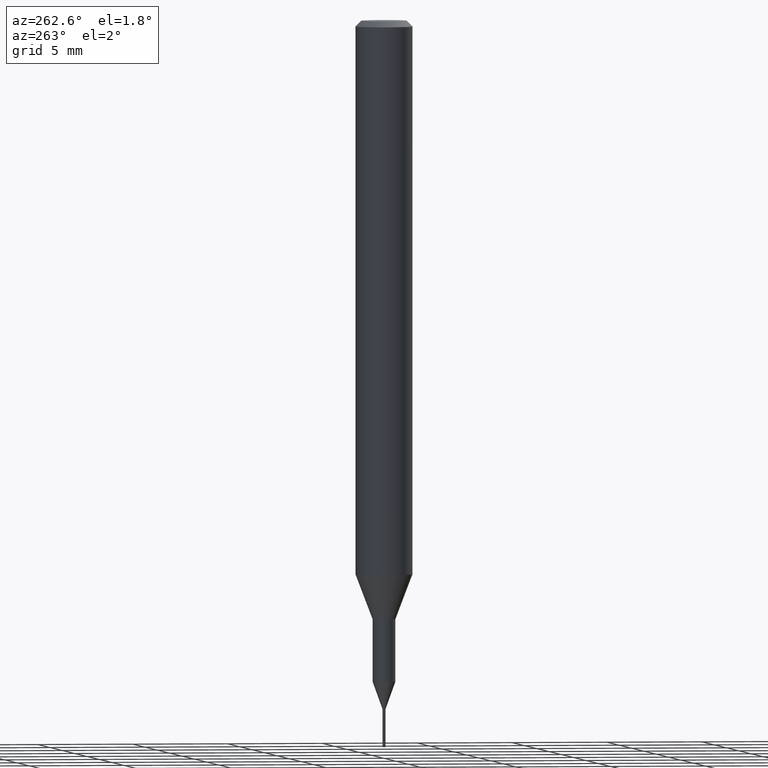
[diagram: clean part render]
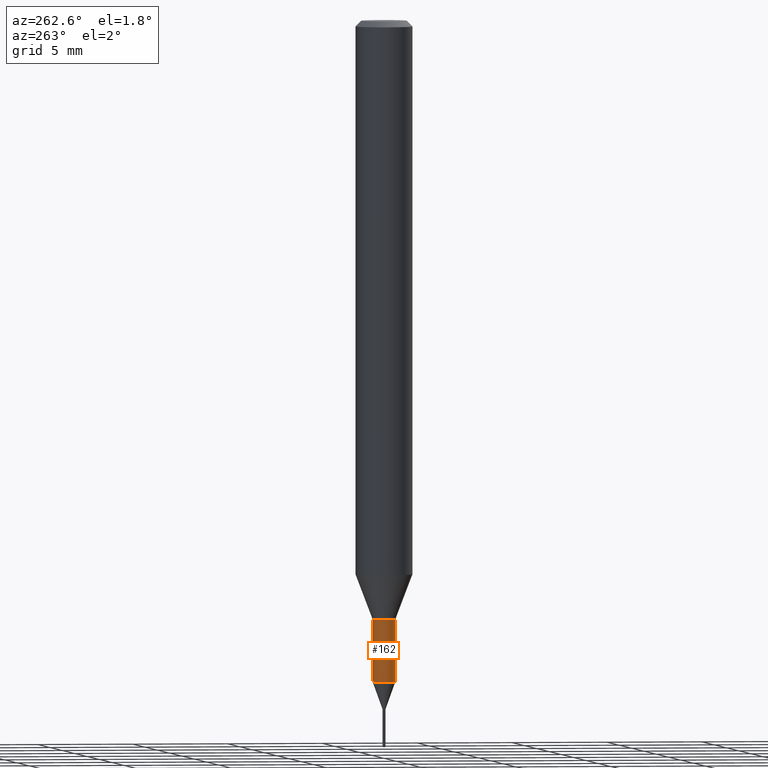
[diagram: same view with one face highlighted and labeled with its STEP entity id]
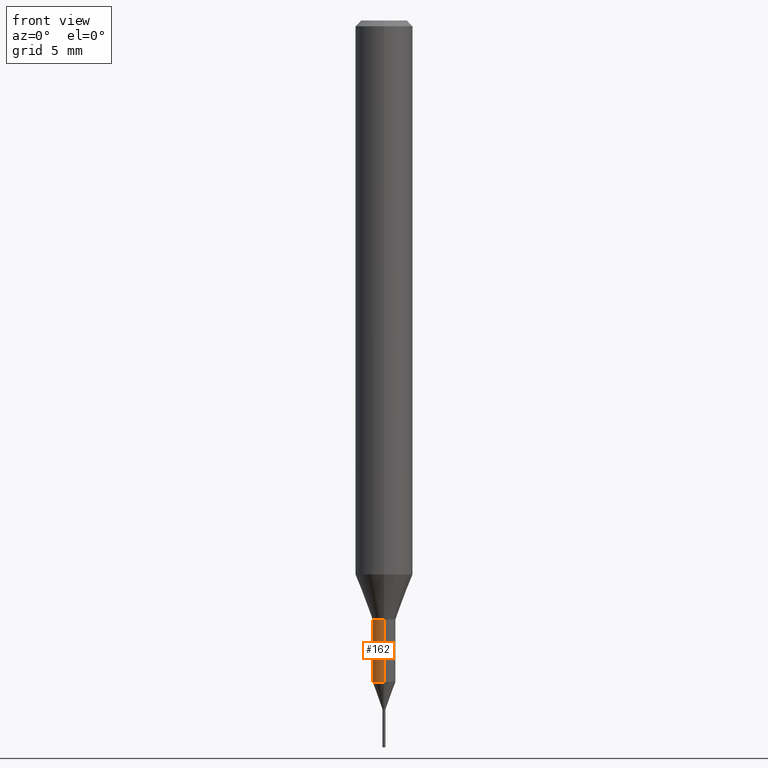
[diagram: same view with one face highlighted and labeled with its STEP entity id]
A machine part, auxiliary view. The second image highlights one B-rep face of the part: STEP entity #162.
A second angle (front view) of the same face is appended — the face is thin or edge-on in the first view.
In plain terms, the highlighted cylindrical surface (edge-blend (fillet) strip) has radius 0.5999 mm, axis along (-0, -0, 1).
Its self-contained STEP definition (entity closure, byte-faithful):
#116=EDGE_CURVE('',#192,#190,#295,.T.);
#126=VERTEX_POINT('',#307);
#132=EDGE_CURVE('',#250,#190,#313,.T.);
#162=ADVANCED_FACE('',(#347),#348,.T.);
#166=EDGE_CURVE('',#126,#250,#352,.T.);
#190=VERTEX_POINT('',#379);
#192=VERTEX_POINT('',#381);
#246=EDGE_CURVE('',#192,#126,#441,.T.);
#250=VERTEX_POINT('',#445);
#295=CIRCLE('',#486,0.59995);
#307=CARTESIAN_POINT('',(7.34702581975735E-017,-0.59995,-31.3));
#313=LINE('',#510,#511);
#347=FACE_OUTER_BOUND('',#552,.T.);
#348=CYLINDRICAL_SURFACE('',#553,0.59995);
#352=CIRCLE('',#559,0.59995);
#379=CARTESIAN_POINT('',(0.0,0.59995,-34.571));
#381=CARTESIAN_POINT('',(7.34702581975735E-017,-0.59995,-34.571));
#441=LINE('',#677,#678);
#445=CARTESIAN_POINT('',(0.0,0.59995,-31.3));
#486=AXIS2_PLACEMENT_3D('',#721,#722,#723);
#510=CARTESIAN_POINT('',(-7.34702581975735E-017,0.59995,-32.9355));
#511=VECTOR('',#745,1.0);
#552=EDGE_LOOP('',(#793,#794,#795,#796));
#553=AXIS2_PLACEMENT_3D('',#797,#798,#799);
#559=AXIS2_PLACEMENT_3D('',#803,#804,#805);
#677=CARTESIAN_POINT('',(7.34702581975735E-017,-0.59995,-32.9355));
#678=VECTOR('',#911,1.0);
#721=CARTESIAN_POINT('',(0.0,0.0,-34.571));
#722=DIRECTION('',(0.0,0.0,-1.0));
#723=DIRECTION('',(0.0,1.0,0.0));
#745=DIRECTION('',(0.0,0.0,-1.0));
#793=ORIENTED_EDGE('',*,*,#132,.T.);
#794=ORIENTED_EDGE('',*,*,#116,.F.);
#795=ORIENTED_EDGE('',*,*,#246,.T.);
#796=ORIENTED_EDGE('',*,*,#166,.T.);
#797=CARTESIAN_POINT('',(0.0,0.0,-32.9355));
#798=DIRECTION('',(-0.0,-0.0,1.0));
#799=DIRECTION('',(0.0,1.0,0.0));
#803=CARTESIAN_POINT('',(0.0,0.0,-31.3));
#804=DIRECTION('',(0.0,0.0,-1.0));
#805=DIRECTION('',(0.0,1.0,0.0));
#911=DIRECTION('',(-0.0,-0.0,1.0));